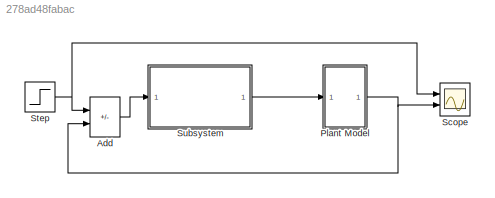
MODEL slx_278ad48fabac
KIND model
CONFIG AbsTol = auto
CONFIG EnableMultiTasking = off
CONFIG FixedStep = auto
CONFIG MaxStep = auto
CONFIG MinStep = auto
CONFIG RelTol = 1e-3
CONFIG SampleTimeConstraint = Unconstrained
CONFIG SolverName = VariableStepAuto
CONFIG StartTime = 0.0
CONFIG StopTime = 10
WORKSPACE source: mxarray member
WORKSPACE Param: Simulink.Parameter (value not decoded)
BLOCK [Sum] Add
  IconShape = rectangular
  Inputs = +-
  Ports = [2, 1]
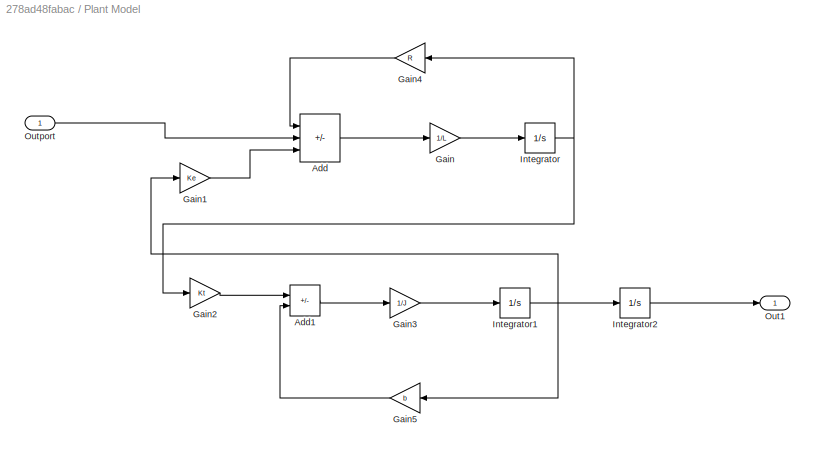
BLOCK [SubSystem] Plant Model
  Ports = [1, 1]
  RequestExecContextInheritance = off
BLOCK [Sum] Plant Model/Add
  IconShape = rectangular
  Inputs = -+-
  Ports = [3, 1]
BLOCK [Sum] Plant Model/Add1
  IconShape = rectangular
  Inputs = +-
  Ports = [2, 1]
BLOCK [Gain] Plant Model/Gain
  Gain = 1/L
BLOCK [Gain] Plant Model/Gain1
  Gain = Ke
BLOCK [Gain] Plant Model/Gain2
  Gain = Kt
BLOCK [Gain] Plant Model/Gain3
  Gain = 1/J
BLOCK [Gain] Plant Model/Gain4
  Gain = R
  NameLocation = top
BLOCK [Gain] Plant Model/Gain5
  Gain = b
  NameLocation = top
BLOCK [Integrator] Plant Model/Integrator
  Ports = [1, 1]
BLOCK [Integrator] Plant Model/Integrator1
  Ports = [1, 1]
BLOCK [Integrator] Plant Model/Integrator2
  Ports = [1, 1]
BLOCK [Outport] Plant Model/Out1
BLOCK [Inport] Plant Model/Outport
BLOCK [Scope] Scope
  Floating = off
  NumInputPorts = 2
  Ports = [2]
  ScopeSpecificationString = Simulink.scopes.TimeScopeBlockCfg('CurrentConfiguration', extmgr.ConfigurationSet(extmgr.Configuration('Core','General UI',true),extmgr.Configuration('Core','Source UI',true),extmgr.Configuration('Sources','WiredSimulink',true),extmgr.Configuration('Visuals','Time Domain',true,'SerializedDisplays',{struct('MinYLimReal','-32.97293','MaxYLimReal','296.75635','YLabelReal','','MinYLimMag','0.00000','M...<+1444ch>
BLOCK [Step] Step
  After = 230
  SampleTime = 0
BLOCK [ModelReference] Subsystem
  ModelNameDialog = Subsystem
  ModelReferenceVersion = 1.5
  Ports = [1, 1]
LINE Add:1 -> Subsystem:1
LINE Plant Model/Add1:1 -> Plant Model/Gain3:1
LINE Plant Model/Add:1 -> Plant Model/Gain:1
LINE Plant Model/Gain1:1 -> Plant Model/Add:3
LINE Plant Model/Gain2:1 -> Plant Model/Add1:1
LINE Plant Model/Gain3:1 -> Plant Model/Integrator1:1
LINE Plant Model/Gain4:1 -> Plant Model/Add:1
LINE Plant Model/Gain5:1 -> Plant Model/Add1:2
LINE Plant Model/Gain:1 -> Plant Model/Integrator:1
NET Plant Model/Integrator1:1 -> Plant Model/Gain1:1, Plant Model/Gain5:1, Plant Model/Integrator2:1
LINE Plant Model/Integrator2:1 -> Plant Model/Out1:1
NET Plant Model/Integrator:1 -> Plant Model/Gain2:1, Plant Model/Gain4:1
LINE Plant Model/Outport:1 -> Plant Model/Add:2
NET Plant Model:1 -> Add:2, Scope:2
NET Step:1 -> Add:1, Scope:1
LINE Subsystem:1 -> Plant Model:1
note: NET lines group one-source signal fan-out (src -> all destinations, sorted); 1:1 wires keep LINE
